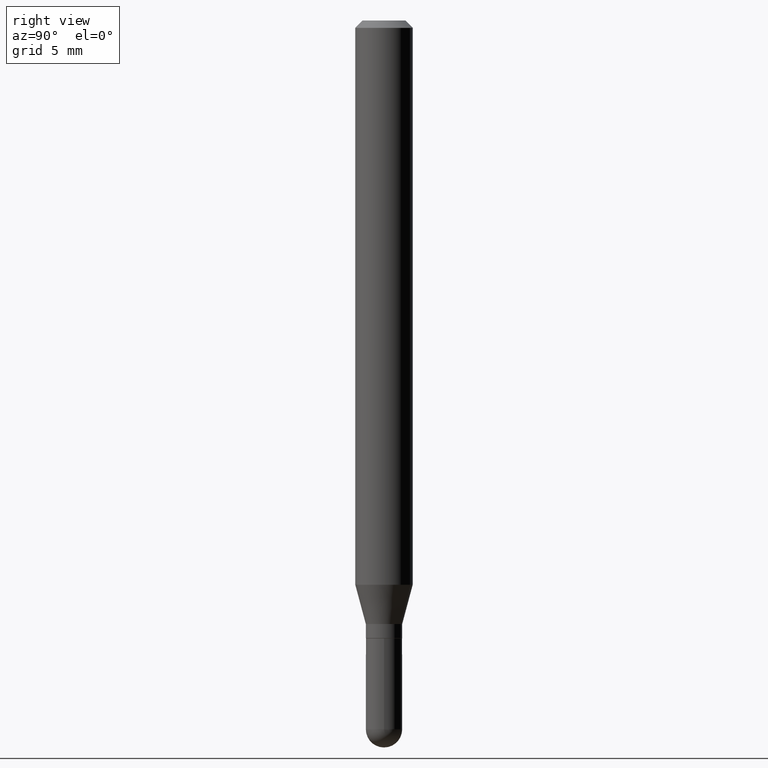
[diagram: clean part render]
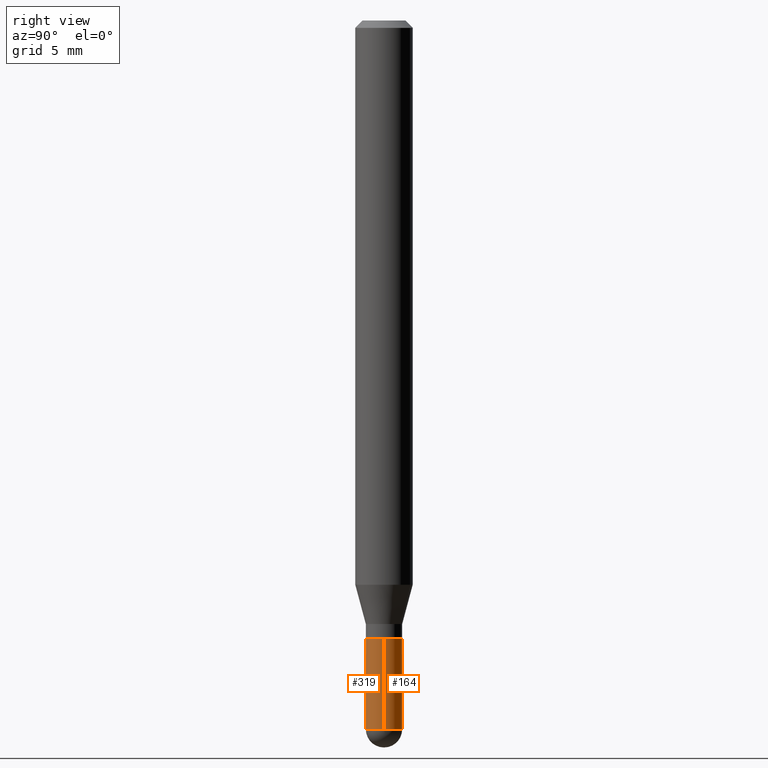
[diagram: same view with one multi-face feature highlighted, each face labeled with its STEP entity id]
A machine part, right view. The highlighted faces form ONE feature: a constant-radius fillet chain: 2 tangent blend faces with common blend radius 0.95 mm. The faces share edges in the B-rep.
Their STEP definitions:
[1] entity #164 (Cylinder):
#1 = LINE ( 'NONE', #163, #359 ) ;
#2 = VERTEX_POINT ( 'NONE', #440 ) ;
#13 = EDGE_CURVE ( 'NONE', #138, #424, #52, .T. ) ;
#42 = DIRECTION ( 'NONE',  ( -2.445468806185136597E-29, 3.491481338843145583E-15, 1.000000000000000000 ) ) ;
#52 = CIRCLE ( 'NONE', #255, 0.03740000000000000269 ) ;
#65 = EDGE_CURVE ( 'NONE', #495, #424, #142, .T. ) ;
#85 = CARTESIAN_POINT ( 'NONE',  ( 3.567205347582258439E-29, -5.093023828970496460E-15, -1.458699999999999886 ) ) ;
#86 = CARTESIAN_POINT ( 'NONE',  ( -0.03740000000000000269, -4.500827340614384492E-15, -1.271700000000000053 ) ) ;
#88 = CARTESIAN_POINT ( 'NONE',  ( 0.03740000000000000269, -4.701279622752295282E-15, -1.271700000000000053 ) ) ;
#105 = ORIENTED_EDGE ( 'NONE', *, *, #13, .F. ) ;
#129 = DIRECTION ( 'NONE',  ( -2.445468806185136597E-29, 3.491481338843145583E-15, 1.000000000000000000 ) ) ;
#130 = CIRCLE ( 'NONE', #435, 0.03739999999999999575 ) ;
#137 = AXIS2_PLACEMENT_3D ( 'NONE', #357, #198, #503 ) ;
#138 = VERTEX_POINT ( 'NONE', #88 ) ;
#142 = LINE ( 'NONE', #334, #358 ) ;
#156 = CIRCLE ( 'NONE', #445, 0.03739999999999999575 ) ;
#163 = CARTESIAN_POINT ( 'NONE',  ( 0.03739999999999999575, -2.611628041454663509E-16, 1.823690114147680082E-30 ) ) ;
#164 = ADVANCED_FACE ( 'NONE', ( #193 ), #309, .T. ) ;
#167 = DIRECTION ( 'NONE',  ( 1.000000000000000000, -6.982962677686276177E-15, 0.000000000000000000 ) ) ;
#180 = CARTESIAN_POINT ( 'NONE',  ( -0.03739999999999999575, -4.500827340614384492E-15, -1.458699999999999886 ) ) ;
#186 = ORIENTED_EDGE ( 'NONE', *, *, #343, .T. ) ;
#193 = FACE_OUTER_BOUND ( 'NONE', #464, .T. ) ;
#198 = DIRECTION ( 'NONE',  ( -2.445468806185136597E-29, 3.491481338843145583E-15, 1.000000000000000000 ) ) ;
#237 = CARTESIAN_POINT ( 'NONE',  ( 3.567205347582258439E-29, -5.093023828970496460E-15, -1.458699999999999886 ) ) ;
#255 = AXIS2_PLACEMENT_3D ( 'NONE', #259, #483, #405 ) ;
#259 = CARTESIAN_POINT ( 'NONE',  ( 3.109902680825638129E-29, -4.440116818606828093E-15, -1.271700000000000053 ) ) ;
#303 = DIRECTION ( 'NONE',  ( -2.445468806185136877E-29, 3.491481338843145188E-15, 1.000000000000000000 ) ) ;
#309 = CYLINDRICAL_SURFACE ( 'NONE', #137, 0.03739999999999999575 ) ;
#333 = ORIENTED_EDGE ( 'NONE', *, *, #430, .F. ) ;
#334 = CARTESIAN_POINT ( 'NONE',  ( -0.03739999999999999575, 2.657429831742774393E-16, -1.839681723755334690E-30 ) ) ;
#337 = ORIENTED_EDGE ( 'NONE', *, *, #373, .T. ) ;
#343 = EDGE_CURVE ( 'NONE', #377, #2, #130, .T. ) ;
#357 = CARTESIAN_POINT ( 'NONE',  ( 0.000000000000000000, 0.000000000000000000, 0.000000000000000000 ) ) ;
#358 = VECTOR ( 'NONE', #303, 39.37007874015748143 ) ;
#359 = VECTOR ( 'NONE', #434, 39.37007874015748143 ) ;
#373 = EDGE_CURVE ( 'NONE', #2, #495, #156, .T. ) ;
#377 = VERTEX_POINT ( 'NONE', #432 ) ;
#401 = DIRECTION ( 'NONE',  ( 1.000000000000000000, -6.982962677686276177E-15, 0.000000000000000000 ) ) ;
#405 = DIRECTION ( 'NONE',  ( 1.000000000000000000, -6.982962677686274599E-15, 0.000000000000000000 ) ) ;
#424 = VERTEX_POINT ( 'NONE', #86 ) ;
#430 = EDGE_CURVE ( 'NONE', #377, #138, #1, .T. ) ;
#432 = CARTESIAN_POINT ( 'NONE',  ( 0.03739999999999999575, -5.027733127934128282E-15, -1.458699999999999886 ) ) ;
#434 = DIRECTION ( 'NONE',  ( -2.445468806185136877E-29, 3.491481338843145188E-15, 1.000000000000000000 ) ) ;
#435 = AXIS2_PLACEMENT_3D ( 'NONE', #237, #42, #167 ) ;
#440 = CARTESIAN_POINT ( 'NONE',  ( 2.657429831743125929E-16, 0.03739999999999483321, -1.458699999999999886 ) ) ;
#445 = AXIS2_PLACEMENT_3D ( 'NONE', #85, #129, #401 ) ;
#464 = EDGE_LOOP ( 'NONE', ( #337, #493, #105, #333, #186 ) ) ;
#483 = DIRECTION ( 'NONE',  ( -2.445468806185136597E-29, 3.491481338843145583E-15, 1.000000000000000000 ) ) ;
#493 = ORIENTED_EDGE ( 'NONE', *, *, #65, .T. ) ;
#495 = VERTEX_POINT ( 'NONE', #180 ) ;
#503 = DIRECTION ( 'NONE',  ( 1.000000000000000000, -6.982962677686266711E-15, 4.876176775795936353E-29 ) ) ;
[2] entity #319 (Cylinder):
#1 = LINE ( 'NONE', #163, #359 ) ;
#4 = CIRCLE ( 'NONE', #19, 0.03739999999999999575 ) ;
#19 = AXIS2_PLACEMENT_3D ( 'NONE', #502, #112, #132 ) ;
#44 = DIRECTION ( 'NONE',  ( 1.000000000000000000, -6.982962677686276177E-15, 0.000000000000000000 ) ) ;
#56 = EDGE_LOOP ( 'NONE', ( #145, #258, #261, #288, #336 ) ) ;
#65 = EDGE_CURVE ( 'NONE', #495, #424, #142, .T. ) ;
#77 = EDGE_CURVE ( 'NONE', #121, #377, #4, .T. ) ;
#81 = DIRECTION ( 'NONE',  ( 1.000000000000000000, -6.982962677686266711E-15, 4.876176775795936353E-29 ) ) ;
#86 = CARTESIAN_POINT ( 'NONE',  ( -0.03740000000000000269, -4.500827340614384492E-15, -1.271700000000000053 ) ) ;
#88 = CARTESIAN_POINT ( 'NONE',  ( 0.03740000000000000269, -4.701279622752295282E-15, -1.271700000000000053 ) ) ;
#112 = DIRECTION ( 'NONE',  ( -2.445468806185136597E-29, 3.491481338843145583E-15, 1.000000000000000000 ) ) ;
#121 = VERTEX_POINT ( 'NONE', #447 ) ;
#132 = DIRECTION ( 'NONE',  ( 1.000000000000000000, -6.982962677686276177E-15, 0.000000000000000000 ) ) ;
#138 = VERTEX_POINT ( 'NONE', #88 ) ;
#142 = LINE ( 'NONE', #334, #358 ) ;
#145 = ORIENTED_EDGE ( 'NONE', *, *, #65, .F. ) ;
#148 = AXIS2_PLACEMENT_3D ( 'NONE', #205, #242, #81 ) ;
#153 = EDGE_CURVE ( 'NONE', #424, #138, #155, .T. ) ;
#155 = CIRCLE ( 'NONE', #270, 0.03740000000000000269 ) ;
#158 = DIRECTION ( 'NONE',  ( 1.000000000000000000, -6.982962677686274599E-15, 0.000000000000000000 ) ) ;
#163 = CARTESIAN_POINT ( 'NONE',  ( 0.03739999999999999575, -2.611628041454663509E-16, 1.823690114147680082E-30 ) ) ;
#180 = CARTESIAN_POINT ( 'NONE',  ( -0.03739999999999999575, -4.500827340614384492E-15, -1.458699999999999886 ) ) ;
#205 = CARTESIAN_POINT ( 'NONE',  ( 0.000000000000000000, 0.000000000000000000, 0.000000000000000000 ) ) ;
#242 = DIRECTION ( 'NONE',  ( -2.445468806185136597E-29, 3.491481338843145583E-15, 1.000000000000000000 ) ) ;
#243 = DIRECTION ( 'NONE',  ( -2.445468806185136597E-29, 3.491481338843145583E-15, 1.000000000000000000 ) ) ;
#258 = ORIENTED_EDGE ( 'NONE', *, *, #425, .T. ) ;
#261 = ORIENTED_EDGE ( 'NONE', *, *, #77, .T. ) ;
#270 = AXIS2_PLACEMENT_3D ( 'NONE', #441, #481, #158 ) ;
#288 = ORIENTED_EDGE ( 'NONE', *, *, #430, .T. ) ;
#303 = DIRECTION ( 'NONE',  ( -2.445468806185136877E-29, 3.491481338843145188E-15, 1.000000000000000000 ) ) ;
#319 = ADVANCED_FACE ( 'NONE', ( #398 ), #328, .T. ) ;
#326 = CIRCLE ( 'NONE', #450, 0.03739999999999999575 ) ;
#328 = CYLINDRICAL_SURFACE ( 'NONE', #148, 0.03739999999999999575 ) ;
#334 = CARTESIAN_POINT ( 'NONE',  ( -0.03739999999999999575, 2.657429831742774393E-16, -1.839681723755334690E-30 ) ) ;
#336 = ORIENTED_EDGE ( 'NONE', *, *, #153, .F. ) ;
#358 = VECTOR ( 'NONE', #303, 39.37007874015748143 ) ;
#359 = VECTOR ( 'NONE', #434, 39.37007874015748143 ) ;
#361 = CARTESIAN_POINT ( 'NONE',  ( 3.567205347582258439E-29, -5.093023828970496460E-15, -1.458699999999999886 ) ) ;
#377 = VERTEX_POINT ( 'NONE', #432 ) ;
#398 = FACE_OUTER_BOUND ( 'NONE', #56, .T. ) ;
#424 = VERTEX_POINT ( 'NONE', #86 ) ;
#425 = EDGE_CURVE ( 'NONE', #495, #121, #326, .T. ) ;
#430 = EDGE_CURVE ( 'NONE', #377, #138, #1, .T. ) ;
#432 = CARTESIAN_POINT ( 'NONE',  ( 0.03739999999999999575, -5.027733127934128282E-15, -1.458699999999999886 ) ) ;
#434 = DIRECTION ( 'NONE',  ( -2.445468806185136877E-29, 3.491481338843145188E-15, 1.000000000000000000 ) ) ;
#441 = CARTESIAN_POINT ( 'NONE',  ( 3.109902680825638129E-29, -4.440116818606828093E-15, -1.271700000000000053 ) ) ;
#447 = CARTESIAN_POINT ( 'NONE',  ( -2.611628041454302112E-16, -0.03740000000000502645, -1.458699999999999886 ) ) ;
#450 = AXIS2_PLACEMENT_3D ( 'NONE', #361, #243, #44 ) ;
#481 = DIRECTION ( 'NONE',  ( -2.445468806185136597E-29, 3.491481338843145583E-15, 1.000000000000000000 ) ) ;
#495 = VERTEX_POINT ( 'NONE', #180 ) ;
#502 = CARTESIAN_POINT ( 'NONE',  ( 3.567205347582258439E-29, -5.093023828970496460E-15, -1.458699999999999886 ) ) ;